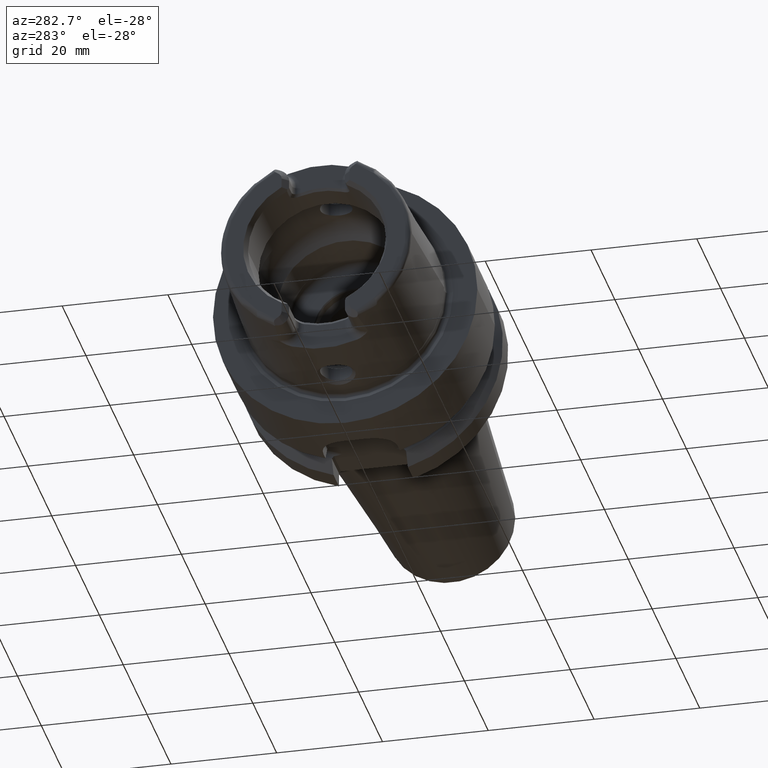
[diagram: clean part render]
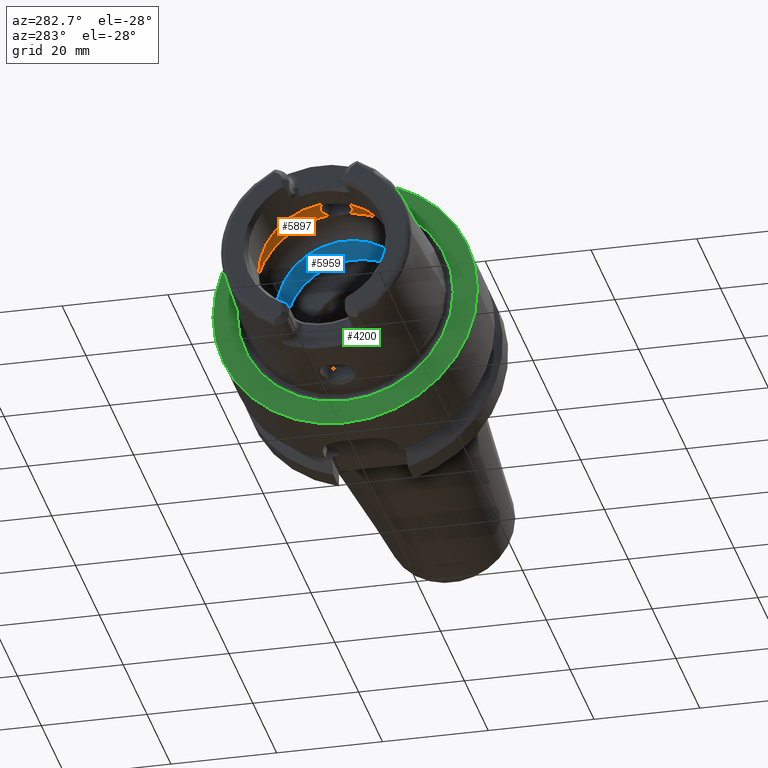
[diagram: same view with three faces highlighted in distinct colors, each labeled with its STEP entity id]
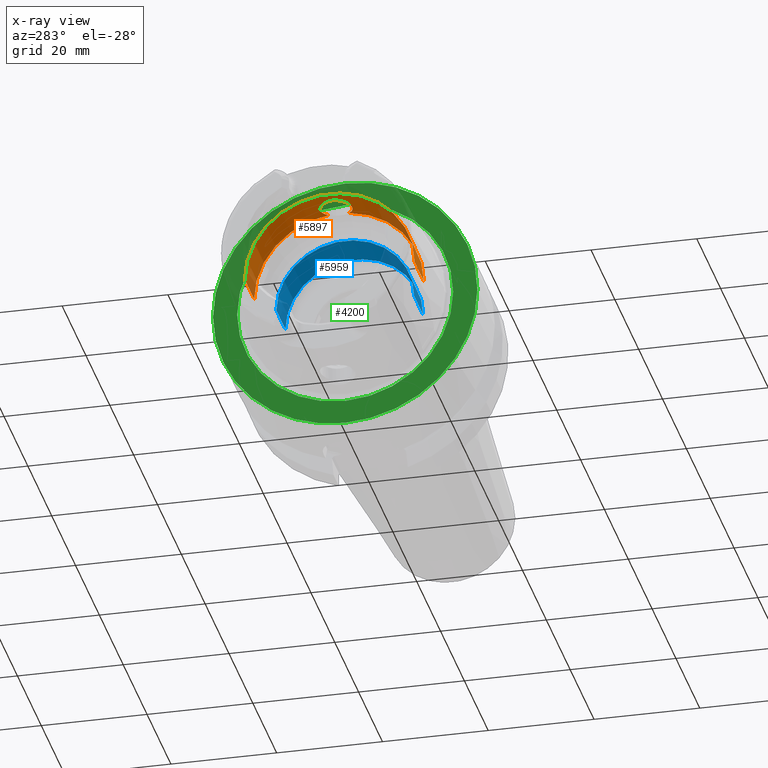
[diagram: x-ray of the same camera — body ghosted, the three highlighted faces saturated]
A machine part, auxiliary view with three faces highlighted in distinct colors.
The next image is the same camera in x-ray (body ghosted, the three faces saturated) — at least one of them is partly hidden behind the body in this view.
Their STEP definitions:

[orange] entity #5897 — the highlighted cylindrical surface (partial cylindrical patch) has radius 16.04 mm, axis along (1, 0, 0).
#2157=CARTESIAN_POINT('',(-5.207075858867E0,1.934553923521E0,1.592291120106E1));
#2159=CARTESIAN_POINT('',(-5.207075858867E0,-1.934553923521E0,
1.592291120106E1));
#2173=CARTESIAN_POINT('',(-5.207075858867E0,1.934553923521E0,1.592291120106E1));
#2174=CARTESIAN_POINT('',(-5.306320503305E0,2.052183335833E0,1.590861981689E1));
#2175=CARTESIAN_POINT('',(-5.520476497369E0,2.269869891704E0,1.587956102050E1));
#2176=CARTESIAN_POINT('',(-5.894028504029E0,2.548236377436E0,1.583695701916E1));
#2177=CARTESIAN_POINT('',(-6.305385003655E0,2.764723008499E0,1.580028936537E1));
#2178=CARTESIAN_POINT('',(-6.739093470370E0,2.913892885959E0,1.577324272562E1));
#2179=CARTESIAN_POINT('',(-7.191228107409E0,2.995924116193E0,1.575774568186E1));
#2180=CARTESIAN_POINT('',(-7.660510654510E0,3.008582784075E0,1.575531451767E1));
#2181=CARTESIAN_POINT('',(-8.146781883912E0,2.943044302203E0,1.576780001743E1));
#2182=CARTESIAN_POINT('',(-8.609725020835E0,2.801070089858E0,1.579386826397E1));
#2183=CARTESIAN_POINT('',(-9.045274296343E0,2.586784786743E0,1.583070637763E1));
#2184=CARTESIAN_POINT('',(-9.445937304317E0,2.301136177936E0,1.587517601580E1));
#2185=CARTESIAN_POINT('',(-9.799042926387E0,1.948687636399E0,1.592272085609E1));
#2186=CARTESIAN_POINT('',(-1.009339556115E1,1.537509778757E0,1.596823642170E1));
#2187=CARTESIAN_POINT('',(-1.032634342467E1,1.054522533406E0,1.600806839229E1));
#2188=CARTESIAN_POINT('',(-1.046989883616E1,5.251672913284E-1,
1.603432516457E1));
#2189=CARTESIAN_POINT('',(-1.05E1,1.762494104108E-1,1.604E1));
#2190=CARTESIAN_POINT('',(-1.05E1,0.E0,1.604E1));
#2192=CARTESIAN_POINT('',(-5.207075858867E0,0.E0,0.E0));
#2193=DIRECTION('',(1.E0,0.E0,0.E0));
#2194=DIRECTION('',(0.E0,1.E0,0.E0));
#2195=AXIS2_PLACEMENT_3D('',#2192,#2193,#2194);
#2197=CARTESIAN_POINT('',(-5.207075858867E0,0.E0,0.E0));
#2198=DIRECTION('',(1.E0,0.E0,0.E0));
#2199=DIRECTION('',(0.E0,-1.206080999702E-1,9.927001995676E-1));
#2200=AXIS2_PLACEMENT_3D('',#2197,#2198,#2199);
#2202=CARTESIAN_POINT('',(-1.05E1,0.E0,1.604E1));
#2203=CARTESIAN_POINT('',(-1.05E1,-1.755342483422E-1,1.604E1));
#2204=CARTESIAN_POINT('',(-1.047014794877E1,-5.229251093153E-1,
1.603437221888E1));
#2205=CARTESIAN_POINT('',(-1.032791385930E1,-1.049702619740E0,
1.600835368841E1));
#2206=CARTESIAN_POINT('',(-1.009770259122E1,-1.529846448746E0,
1.596895246629E1));
#2207=CARTESIAN_POINT('',(-9.806279667905E0,-1.939932067796E0,
1.592378677339E1));
#2208=CARTESIAN_POINT('',(-9.456158236555E0,-2.292295766108E0,
1.587645662467E1));
#2209=CARTESIAN_POINT('',(-9.058710431136E0,-2.578569590166E0,
1.583205208676E1));
#2210=CARTESIAN_POINT('',(-8.626497976351E0,-2.794212612404E0,
1.579508959542E1));
#2211=CARTESIAN_POINT('',(-8.167357135096E0,-2.938272639501E0,
1.576869642913E1));
#2212=CARTESIAN_POINT('',(-7.684146534679E0,-3.007155479900E0,
1.575558945042E1));
#2213=CARTESIAN_POINT('',(-7.214328705971E0,-2.998334851601E0,
1.575728331260E1));
#2214=CARTESIAN_POINT('',(-6.757920099464E0,-2.918988827649E0,
1.577229556555E1));
#2215=CARTESIAN_POINT('',(-6.318667255520E0,-2.770706375567E0,
1.579924059192E1));
#2216=CARTESIAN_POINT('',(-5.901987560119E0,-2.553541097638E0,
1.583611009340E1));
#2217=CARTESIAN_POINT('',(-5.523827556712E0,-2.273110761877E0,
1.587911419274E1));
#2218=CARTESIAN_POINT('',(-5.307334756401E0,-2.053385476223E0,
1.590847376286E1));
#2219=CARTESIAN_POINT('',(-5.207075858867E0,-1.934553923521E0,
1.592291120106E1));
#2264=DIRECTION('',(-1.E0,0.E0,0.E0));
#2265=VECTOR('',#2264,7.745129591986E0);
#2266=CARTESIAN_POINT('',(-5.207075858867E0,-1.604E1,0.E0));
#2267=LINE('',#2266,#2265);
#2268=DIRECTION('',(-1.E0,0.E0,0.E0));
#2269=VECTOR('',#2268,7.745129591986E0);
#2270=CARTESIAN_POINT('',(-5.207075858867E0,1.604E1,0.E0));
#2271=LINE('',#2270,#2269);
#2521=CARTESIAN_POINT('',(-1.295220545085E1,0.E0,0.E0));
#2522=DIRECTION('',(1.E0,0.E0,0.E0));
#2523=DIRECTION('',(0.E0,1.E0,0.E0));
#2524=AXIS2_PLACEMENT_3D('',#2521,#2522,#2523);
#3092=CARTESIAN_POINT('',(-1.05E1,0.E0,1.604E1));
#3093=VERTEX_POINT('',#3092);
#3118=CARTESIAN_POINT('',(-5.207075858867E0,1.604E1,0.E0));
#3119=VERTEX_POINT('',#3118);
#3120=CARTESIAN_POINT('',(-1.295220545085E1,1.604E1,0.E0));
#3121=VERTEX_POINT('',#3120);
#3130=CARTESIAN_POINT('',(-5.207075858867E0,-1.604E1,0.E0));
#3131=VERTEX_POINT('',#3130);
#3132=CARTESIAN_POINT('',(-1.295220545085E1,-1.604E1,0.E0));
#3133=VERTEX_POINT('',#3132);
#3148=VERTEX_POINT('',#2157);
#3149=VERTEX_POINT('',#2159);
#5880=CARTESIAN_POINT('',(-2.66425E1,0.E0,0.E0));
#5881=DIRECTION('',(1.E0,0.E0,0.E0));
#5882=DIRECTION('',(0.E0,-1.E0,0.E0));
#5883=AXIS2_PLACEMENT_3D('',#5880,#5881,#5882);
#5884=CYLINDRICAL_SURFACE('',#5883,1.604E1);
#5885=ORIENTED_EDGE('',*,*,#5839,.F.);
#5886=ORIENTED_EDGE('',*,*,#5875,.F.);
#5888=ORIENTED_EDGE('',*,*,#5887,.T.);
#5890=ORIENTED_EDGE('',*,*,#5889,.T.);
#5892=ORIENTED_EDGE('',*,*,#5891,.F.);
#5893=ORIENTED_EDGE('',*,*,#5867,.F.);
#5894=ORIENTED_EDGE('',*,*,#5609,.F.);
#5895=EDGE_LOOP('',(#5885,#5886,#5888,#5890,#5892,#5893,#5894));
#5896=FACE_OUTER_BOUND('',#5895,.F.);
#5897=ADVANCED_FACE('',(#5896),#5884,.F.);
#2191=B_SPLINE_CURVE_WITH_KNOTS('',3,(#2173,#2174,#2175,#2176,#2177,#2178,#2179,
#2180,#2181,#2182,#2183,#2184,#2185,#2186,#2187,#2188,#2189,#2190),
.UNSPECIFIED.,.F.,.F.,(4,1,1,1,1,1,1,1,1,1,1,1,1,1,1,4),(0.E0,6.666666666667E-2,
1.333333333333E-1,2.E-1,2.666666666667E-1,3.333333333333E-1,4.E-1,
4.666666666667E-1,5.333333333333E-1,6.E-1,6.666666666667E-1,7.333333333333E-1,
8.E-1,8.666666666667E-1,9.333333333333E-1,1.E0),.UNSPECIFIED.);
#2196=CIRCLE('',#2195,1.604E1);
#2201=CIRCLE('',#2200,1.604E1);
#2220=B_SPLINE_CURVE_WITH_KNOTS('',3,(#2202,#2203,#2204,#2205,#2206,#2207,#2208,
#2209,#2210,#2211,#2212,#2213,#2214,#2215,#2216,#2217,#2218,#2219),
.UNSPECIFIED.,.F.,.F.,(4,1,1,1,1,1,1,1,1,1,1,1,1,1,1,4),(0.E0,6.666666666667E-2,
1.333333333333E-1,2.E-1,2.666666666667E-1,3.333333333333E-1,4.E-1,
4.666666666667E-1,5.333333333333E-1,6.E-1,6.666666666667E-1,7.333333333333E-1,
8.E-1,8.666666666667E-1,9.333333333333E-1,1.E0),.UNSPECIFIED.);
#2525=CIRCLE('',#2524,1.604E1);
#5609=EDGE_CURVE('',#3093,#3149,#2220,.T.);
#5839=EDGE_CURVE('',#3148,#3093,#2191,.T.);
#5867=EDGE_CURVE('',#3149,#3131,#2201,.T.);
#5875=EDGE_CURVE('',#3119,#3148,#2196,.T.);
#5887=EDGE_CURVE('',#3119,#3121,#2271,.T.);
#5889=EDGE_CURVE('',#3121,#3133,#2525,.T.);
#5891=EDGE_CURVE('',#3131,#3133,#2267,.T.);

[blue] entity #5959 — the highlighted cylindrical surface (partial cylindrical patch) has radius 13.021 mm, axis along (1, 0, 0).
#2168=CARTESIAN_POINT('',(0.E0,0.E0,0.E0));
#2169=DIRECTION('',(1.E0,0.E0,0.E0));
#2170=DIRECTION('',(0.E0,1.E0,0.E0));
#2171=AXIS2_PLACEMENT_3D('',#2168,#2169,#2170);
#2310=DIRECTION('',(-1.E0,0.E0,0.E0));
#2311=VECTOR('',#2310,7.614844924580E0);
#2312=CARTESIAN_POINT('',(7.614844924580E0,1.3021E1,0.E0));
#2313=LINE('',#2312,#2311);
#2319=DIRECTION('',(-1.E0,0.E0,0.E0));
#2320=VECTOR('',#2319,7.614844924580E0);
#2321=CARTESIAN_POINT('',(7.614844924580E0,-1.3021E1,0.E0));
#2322=LINE('',#2321,#2320);
#2323=CARTESIAN_POINT('',(7.614844924580E0,0.E0,0.E0));
#2324=DIRECTION('',(1.E0,0.E0,0.E0));
#2325=DIRECTION('',(0.E0,1.E0,0.E0));
#2326=AXIS2_PLACEMENT_3D('',#2323,#2324,#2325);
#2767=CARTESIAN_POINT('',(7.614844924580E0,1.3021E1,0.E0));
#2769=VERTEX_POINT('',#2767);
#2771=CARTESIAN_POINT('',(7.614844924580E0,-1.3021E1,0.E0));
#2773=VERTEX_POINT('',#2771);
#3116=CARTESIAN_POINT('',(0.E0,1.3021E1,0.E0));
#3117=VERTEX_POINT('',#3116);
#3128=CARTESIAN_POINT('',(0.E0,-1.3021E1,0.E0));
#3129=VERTEX_POINT('',#3128);
#5947=CARTESIAN_POINT('',(-2.66425E1,0.E0,0.E0));
#5948=DIRECTION('',(1.E0,0.E0,0.E0));
#5949=DIRECTION('',(0.E0,-1.E0,0.E0));
#5950=AXIS2_PLACEMENT_3D('',#5947,#5948,#5949);
#5951=CYLINDRICAL_SURFACE('',#5950,1.3021E1);
#5952=ORIENTED_EDGE('',*,*,#5937,.T.);
#5953=ORIENTED_EDGE('',*,*,#5871,.T.);
#5954=ORIENTED_EDGE('',*,*,#5941,.F.);
#5956=ORIENTED_EDGE('',*,*,#5955,.F.);
#5957=EDGE_LOOP('',(#5952,#5953,#5954,#5956));
#5958=FACE_OUTER_BOUND('',#5957,.F.);
#5959=ADVANCED_FACE('',(#5958),#5951,.F.);
#2172=CIRCLE('',#2171,1.3021E1);
#2327=CIRCLE('',#2326,1.3021E1);
#5871=EDGE_CURVE('',#3117,#3129,#2172,.T.);
#5937=EDGE_CURVE('',#2769,#3117,#2313,.T.);
#5941=EDGE_CURVE('',#2773,#3129,#2322,.T.);
#5955=EDGE_CURVE('',#2769,#2773,#2327,.T.);

[green] entity #4200 — the highlighted planar face has unit normal (1, 0, 0).
#867=CARTESIAN_POINT('',(0.E0,0.E0,0.E0));
#868=DIRECTION('',(1.E0,0.E0,0.E0));
#869=DIRECTION('',(0.E0,1.E0,0.E0));
#870=AXIS2_PLACEMENT_3D('',#867,#868,#869);
#872=CARTESIAN_POINT('',(0.E0,0.E0,0.E0));
#873=DIRECTION('',(-1.E0,0.E0,0.E0));
#874=DIRECTION('',(0.E0,1.E0,0.E0));
#875=AXIS2_PLACEMENT_3D('',#872,#873,#874);
#877=CARTESIAN_POINT('',(0.E0,0.E0,0.E0));
#878=DIRECTION('',(-1.E0,0.E0,0.E0));
#879=DIRECTION('',(0.E0,-1.E0,0.E0));
#880=AXIS2_PLACEMENT_3D('',#877,#878,#879);
#882=CARTESIAN_POINT('',(0.E0,0.E0,0.E0));
#883=DIRECTION('',(-1.E0,0.E0,0.E0));
#884=DIRECTION('',(0.E0,1.E0,0.E0));
#885=AXIS2_PLACEMENT_3D('',#882,#883,#884);
#2762=CARTESIAN_POINT('',(0.E0,-2.04248E1,0.E0));
#2763=VERTEX_POINT('',#2762);
#2764=CARTESIAN_POINT('',(0.E0,2.04248E1,0.E0));
#2765=VERTEX_POINT('',#2764);
#3104=CARTESIAN_POINT('',(0.E0,2.5E1,0.E0));
#3105=CARTESIAN_POINT('',(0.E0,-2.5E1,0.E0));
#3106=VERTEX_POINT('',#3104);
#3107=VERTEX_POINT('',#3105);
#4185=CARTESIAN_POINT('',(0.E0,0.E0,0.E0));
#4186=DIRECTION('',(1.E0,0.E0,0.E0));
#4187=DIRECTION('',(0.E0,-1.E0,0.E0));
#4188=AXIS2_PLACEMENT_3D('',#4185,#4186,#4187);
#4189=PLANE('',#4188);
#4191=ORIENTED_EDGE('',*,*,#4190,.T.);
#4193=ORIENTED_EDGE('',*,*,#4192,.F.);
#4194=EDGE_LOOP('',(#4191,#4193));
#4195=FACE_OUTER_BOUND('',#4194,.F.);
#4196=ORIENTED_EDGE('',*,*,#4180,.T.);
#4197=ORIENTED_EDGE('',*,*,#4164,.T.);
#4198=EDGE_LOOP('',(#4196,#4197));
#4199=FACE_BOUND('',#4198,.F.);
#4200=ADVANCED_FACE('',(#4195,#4199),#4189,.F.);
#871=CIRCLE('',#870,2.5E1);
#876=CIRCLE('',#875,2.5E1);
#881=CIRCLE('',#880,2.04248E1);
#886=CIRCLE('',#885,2.04248E1);
#4164=EDGE_CURVE('',#2765,#2763,#886,.T.);
#4180=EDGE_CURVE('',#2763,#2765,#881,.T.);
#4190=EDGE_CURVE('',#3106,#3107,#871,.T.);
#4192=EDGE_CURVE('',#3106,#3107,#876,.T.);